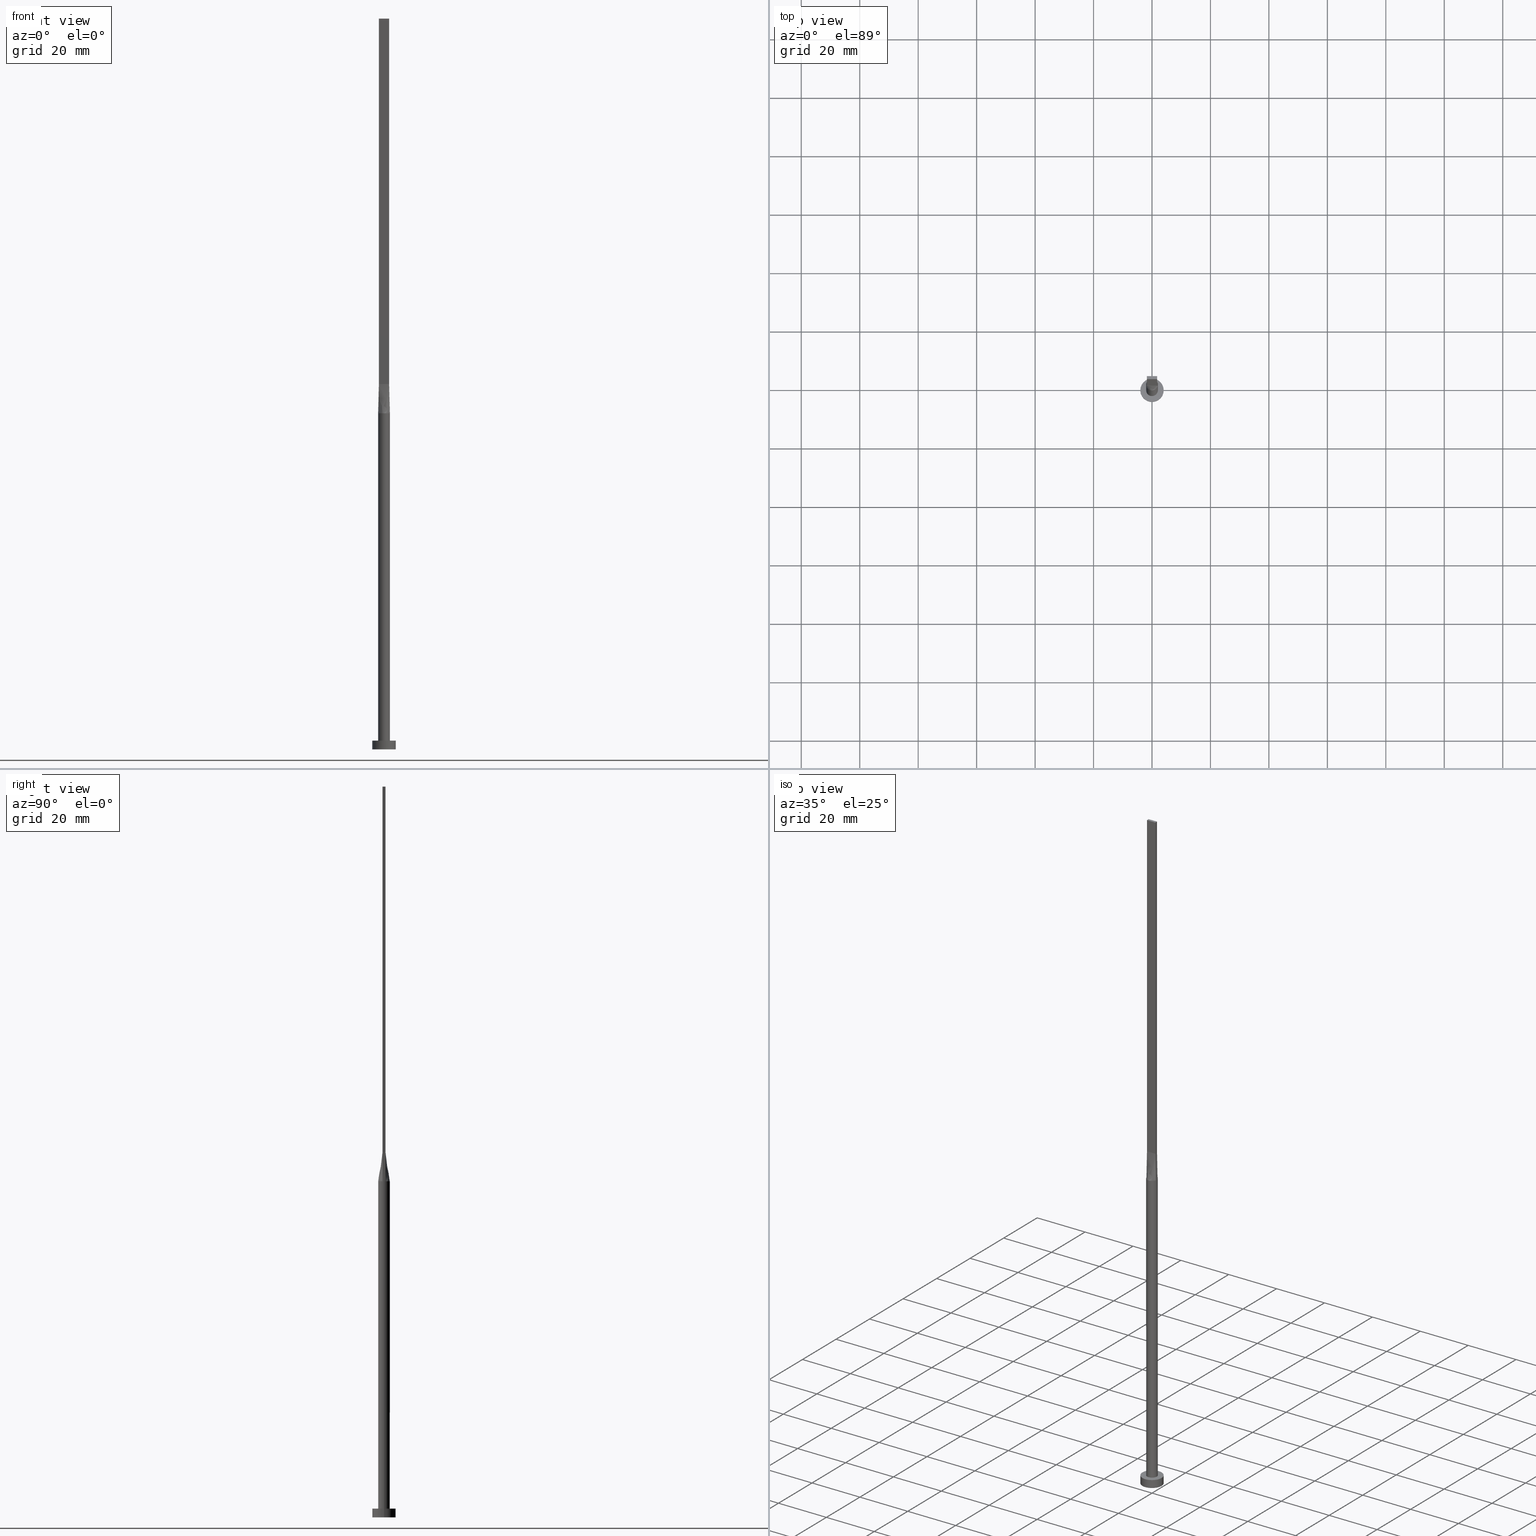
[diagram: canonical four-view strip — front | top / right | iso, engineering-drawing reading convention]
A machine part, canonical four-view strip (front | top / right | iso — engineering-drawing reading convention). The complete STEP part file that produces these views, byte-faithful:
ISO-10303-21;
HEADER;
FILE_DESCRIPTION (( 'STEP AP203' ),
    '1' );
FILE_NAME ('9806.STEP',
    '2023-02-13T13:53:59',
    ( '' ),
    ( '' ),
    'SwSTEP 2.0',
    'SolidWorks 2019',
    '' );
FILE_SCHEMA (( 'CONFIG_CONTROL_DESIGN' ));
ENDSEC;

DATA;
#1 = CARTESIAN_POINT ( 'NONE',  ( -1.812374357931688884, 0.8669367617086288780, 115.0000000000000284 ) ) ;
#2 = COORDINATED_UNIVERSAL_TIME_OFFSET ( 1, 0, .AHEAD. ) ;
#3 = FACE_OUTER_BOUND ( 'NONE', #205, .T. ) ;
#4 = SHAPE_DEFINITION_REPRESENTATION ( #494, #318 ) ;
#5 = CARTESIAN_POINT ( 'NONE',  ( -1.923161340940673369, -0.5494751859438878894, 115.0000000000000000 ) ) ;
#6 = CARTESIAN_POINT ( 'NONE',  ( -2.000000000000000000, 0.000000000000000000, 3.000000000000000000 ) ) ;
#7 = AXIS2_PLACEMENT_3D ( 'NONE', #476, #25, #53 ) ;
#8 = CARTESIAN_POINT ( 'NONE',  ( 4.000000000000000000, 4.898587196589412829E-16, 3.000000000000000000 ) ) ;
#9 = CARTESIAN_POINT ( 'NONE',  ( -1.155438169178558461, -1.647245198242353714, 115.0000000000000568 ) ) ;
#10 = ADVANCED_FACE ( 'NONE', ( #482, #40 ), #217, .T. ) ;
#11 = ORIENTED_EDGE ( 'NONE', *, *, #389, .F. ) ;
#12 = CARTESIAN_POINT ( 'NONE',  ( -0.9545234919502401105, 1.774214358793530177, 115.0000000000000000 ) ) ;
#13 = CARTESIAN_POINT ( 'NONE',  ( 1.604166666666666741, -0.4999999999999997780, 125.0000000000000000 ) ) ;
#14 = EDGE_LOOP ( 'NONE', ( #188, #257, #11, #450 ) ) ;
#15 = CARTESIAN_POINT ( 'NONE',  ( -0.9545234919502417759, -1.774214358793529067, 115.0000000000000000 ) ) ;
#16 = CIRCLE ( 'NONE', #579, 2.000000000000000000 ) ;
#17 = ADVANCED_FACE ( 'NONE', ( #101 ), #285, .T. ) ;
#18 = ORIENTED_EDGE ( 'NONE', *, *, #368, .F. ) ;
#19 = CARTESIAN_POINT ( 'NONE',  ( 0.5022746254375793917, -1.951069421695588169, 114.9999999999999858 ) ) ;
#20 = EDGE_LOOP ( 'NONE', ( #269, #273, #244, #81, #345, #154 ) ) ;
#21 = DIRECTION ( 'NONE',  ( 1.000000000000000000, 0.000000000000000000, 0.000000000000000000 ) ) ;
#22 = CARTESIAN_POINT ( 'NONE',  ( 1.486037034853319616, 1.356520562679217834, 114.9999999999999716 ) ) ;
#23 = ORIENTED_EDGE ( 'NONE', *, *, #204, .T. ) ;
#24 = DIRECTION ( 'NONE',  ( -0.000000000000000000, -0.000000000000000000, -1.000000000000000000 ) ) ;
#25 = DIRECTION ( 'NONE',  ( 0.000000000000000000, 0.000000000000000000, 1.000000000000000000 ) ) ;
#26 = CARTESIAN_POINT ( 'NONE',  ( 1.750000000000000000, -0.4999999999999997780, 125.0000000000000000 ) ) ;
#27 = AXIS2_PLACEMENT_3D ( 'NONE', #514, #553, #67 ) ;
#28 = ORIENTED_EDGE ( 'NONE', *, *, #360, .F. ) ;
#29 = CIRCLE ( 'NONE', #80, 2.000000000000000000 ) ;
#30 = CARTESIAN_POINT ( 'NONE',  ( -0.5833333333333350357, 0.5000000000000002220, 125.0000000000000000 ) ) ;
#31 = EDGE_CURVE ( 'NONE', #471, #287, #241, .T. ) ;
#32 = ORIENTED_EDGE ( 'NONE', *, *, #467, .T. ) ;
#33 = CARTESIAN_POINT ( 'NONE',  ( -0.2916666666666684615, 0.5000000000000002220, 125.0000000000000000 ) ) ;
#34 = CARTESIAN_POINT ( 'NONE',  ( -1.923179810488875541, 0.5494804890868837388, 115.0000000000000000 ) ) ;
#35 = DIRECTION ( 'NONE',  ( 0.000000000000000000, 0.000000000000000000, 1.000000000000000000 ) ) ;
#36 = CC_DESIGN_DATE_AND_TIME_ASSIGNMENT ( #270, #537, ( #77 ) ) ;
#37 = PERSON_AND_ORGANIZATION ( #200, #403 ) ;
#38 = CARTESIAN_POINT ( 'NONE',  ( 1.836523947640823051, -0.5247211278973777926, 120.0000000000000000 ) ) ;
#39 = CARTESIAN_POINT ( 'NONE',  ( 1.750000000000000000, -0.4999999999999997780, 125.0000000000000000 ) ) ;
#40 = FACE_OUTER_BOUND ( 'NONE', #440, .T. ) ;
#41 = SECURITY_CLASSIFICATION_LEVEL ( 'unclassified' ) ;
#42 = AXIS2_PLACEMENT_3D ( 'NONE', #394, #456, #559 ) ;
#43 = VERTEX_POINT ( 'NONE', #5 ) ;
#44 = PRODUCT ( '9806', '9806', '', ( #210 ) ) ;
#45 = AXIS2_PLACEMENT_3D ( 'NONE', #438, #347, #509 ) ;
#46 = PERSON_AND_ORGANIZATION ( #200, #403 ) ;
#47 = LINE ( 'NONE', #534, #277 ) ;
#48 = PLANE ( 'NONE',  #458 ) ;
#49 = CARTESIAN_POINT ( 'NONE',  ( -1.750000000000000000, -0.4999999999999995559, 250.0000000000000000 ) ) ;
#50 = CARTESIAN_POINT ( 'NONE',  ( 1.616149014776643522, 1.193458220519943103, 114.9999999999999858 ) ) ;
#51 = CC_DESIGN_DATE_AND_TIME_ASSIGNMENT ( #166, #133, ( #137 ) ) ;
#52 = CARTESIAN_POINT ( 'NONE',  ( 1.750000000000000000, -0.4999999999999997780, 250.0000000000000000 ) ) ;
#53 = DIRECTION ( 'NONE',  ( 1.000000000000000000, 0.000000000000000000, 0.000000000000000000 ) ) ;
#54 = VERTEX_POINT ( 'NONE', #8 ) ;
#55 = CARTESIAN_POINT ( 'NONE',  ( 1.458333333333333259, -0.4999999999999996669, 125.0000000000000000 ) ) ;
#56 = EDGE_LOOP ( 'NONE', ( #160, #324, #180, #320 ) ) ;
#57 = CARTESIAN_POINT ( 'NONE',  ( -0.1458333333333336479, -0.4999999999999995559, 125.0000000000000000 ) ) ;
#58 = DIRECTION ( 'NONE',  ( 1.000000000000000000, 0.000000000000000000, 0.000000000000000000 ) ) ;
#59 = ADVANCED_FACE ( 'NONE', ( #334 ), #457, .T. ) ;
#60 = DIRECTION ( 'NONE',  ( 2.168404344971008868E-16, -1.000000000000000000, 0.000000000000000000 ) ) ;
#61 = VECTOR ( 'NONE', #452, 1000.000000000000000 ) ;
#62 = CARTESIAN_POINT ( 'NONE',  ( 0.5833333333333333703, -0.4999999999999995559, 125.0000000000000000 ) ) ;
#63 = CC_DESIGN_APPROVAL ( #505, ( #435 ) ) ;
#64 = CARTESIAN_POINT ( 'NONE',  ( -0.9545234919502401105, 1.774214358793530177, 115.0000000000000000 ) ) ;
#65 = LINE ( 'NONE', #155, #290 ) ;
#66 = FACE_OUTER_BOUND ( 'NONE', #56, .T. ) ;
#67 = DIRECTION ( 'NONE',  ( 1.000000000000000000, 0.000000000000000000, 0.000000000000000000 ) ) ;
#68 = PERSON_AND_ORGANIZATION ( #200, #403 ) ;
#69 = CARTESIAN_POINT ( 'NONE',  ( -1.836523947640823273, -0.5247211278973773485, 120.0000000000000000 ) ) ;
#70 = CARTESIAN_POINT ( 'NONE',  ( -0.5022746254375797248, 1.951069421695588169, 115.0000000000000142 ) ) ;
#71 = MANIFOLD_SOLID_BREP ( 'P�idat vysunut�m5', #529 ) ;
#72 = ADVANCED_FACE ( 'NONE', ( #515 ), #344, .F. ) ;
#73 = AXIS2_PLACEMENT_3D ( 'NONE', #260, #207, #446 ) ;
#74 = CARTESIAN_POINT ( 'NONE',  ( -2.000000000000000000, 8.710755549421510381E-17, 114.9999999999999858 ) ) ;
#75 = APPROVAL_ROLE ( '' ) ;
#76 = ORIENTED_EDGE ( 'NONE', *, *, #463, .F. ) ;
#77 = PRODUCT_DEFINITION ( 'NEZN�M�', '', #435, #448 ) ;
#78 = CALENDAR_DATE ( 2023, 13, 2 ) ;
#79 = AXIS2_PLACEMENT_3D ( 'NONE', #235, #517, #356 ) ;
#80 = AXIS2_PLACEMENT_3D ( 'NONE', #198, #164, #259 ) ;
#81 = ORIENTED_EDGE ( 'NONE', *, *, #500, .F. ) ;
#82 = CALENDAR_DATE ( 2023, 13, 2 ) ;
#83 = DIRECTION ( 'NONE',  ( 0.01730198768854153066, -0.004943425053868934910, 0.9998380887777591486 ) ) ;
#84 = CARTESIAN_POINT ( 'NONE',  ( -4.000000000000000000, 0.000000000000000000, 3.000000000000000000 ) ) ;
#85 = EDGE_CURVE ( 'NONE', #215, #445, #348, .T. ) ;
#86 = ORIENTED_EDGE ( 'NONE', *, *, #580, .T. ) ;
#87 = CARTESIAN_POINT ( 'NONE',  ( 1.750000000000000000, -0.4999999999999997780, 250.0000000000000000 ) ) ;
#88 = CARTESIAN_POINT ( 'NONE',  ( -1.749999999999999778, 0.5000000000000002220, 125.0000000000000000 ) ) ;
#89 = B_SPLINE_SURFACE_WITH_KNOTS ( 'NONE', 3, 1, ( 
 ( #141, #173 ),
 ( #326, #533 ),
 ( #497, #100 ),
 ( #231, #490 ),
 ( #139, #114 ),
 ( #422, #562 ) ),
 .UNSPECIFIED., .F., .F., .F.,
 ( 4, 2, 4 ),
 ( 2, 2 ),
 ( 0.000000000000000000, 0.5000000000000000000, 1.000000000000000000 ),
 ( 0.000000000000000000, 1.000000000000000000 ),
 .UNSPECIFIED. ) ;
#90 = CARTESIAN_POINT ( 'NONE',  ( 1.750000000000000000, -0.4999999999999997780, 250.0000000000000000 ) ) ;
#91 = APPROVAL_ROLE ( '' ) ;
#92 = APPROVAL_PERSON_ORGANIZATION ( #576, #340, #91 ) ;
#93 = ORIENTED_EDGE ( 'NONE', *, *, #85, .T. ) ;
#94 = CARTESIAN_POINT ( 'NONE',  ( -4.000000000000000000, 0.000000000000000000, 0.000000000000000000 ) ) ;
#95 = CARTESIAN_POINT ( 'NONE',  ( 1.749999999999999778, 0.3333333333333335369, 125.0000000000000000 ) ) ;
#96 = ORIENTED_EDGE ( 'NONE', *, *, #289, .T. ) ;
#97 = CARTESIAN_POINT ( 'NONE',  ( 1.923047895281646325, 0.5494422557947561403, 115.0000000000000000 ) ) ;
#98 = CARTESIAN_POINT ( 'NONE',  ( 1.616149014776643522, -1.193458220519943547, 115.0000000000000426 ) ) ;
#99 = AXIS2_PLACEMENT_3D ( 'NONE', #551, #461, #21 ) ;
#100 = CARTESIAN_POINT ( 'NONE',  ( -1.749999999999999778, 0.1666666666666670182, 125.0000000000000000 ) ) ;
#101 = FACE_OUTER_BOUND ( 'NONE', #541, .T. ) ;
#102 = ORIENTED_EDGE ( 'NONE', *, *, #289, .F. ) ;
#103 = UNCERTAINTY_MEASURE_WITH_UNIT (LENGTH_MEASURE( 1.000000000000000082E-05 ), #253, 'distance_accuracy_value', 'NONE');
#104 = EDGE_CURVE ( 'NONE', #263, #424, #354, .T. ) ;
#105 = CARTESIAN_POINT ( 'NONE',  ( -0.7291666666666668517, -0.4999999999999995559, 125.0000000000000000 ) ) ;
#106 = CARTESIAN_POINT ( 'NONE',  ( -1.879022738048941710, 0.7035303061092221810, 115.0000000000000142 ) ) ;
#107 = LINE ( 'NONE', #294, #343 ) ;
#108 = CARTESIAN_POINT ( 'NONE',  ( 0.5833333333333314830, 0.5000000000000002220, 125.0000000000000000 ) ) ;
#109 = AXIS2_PLACEMENT_3D ( 'NONE', #254, #307, #58 ) ;
#110 = CARTESIAN_POINT ( 'NONE',  ( -0.1458333333333351189, 0.5000000000000002220, 125.0000000000000000 ) ) ;
#111 = CARTESIAN_POINT ( 'NONE',  ( -1.812374357931689994, -0.8669367617086277678, 115.0000000000000284 ) ) ;
#112 = DIRECTION ( 'NONE',  ( -0.01730198768854153066, -0.004943425053868957461, -0.9998380887777591486 ) ) ;
#113 = CARTESIAN_POINT ( 'NONE',  ( -1.616149014776643744, -1.193458220519941326, 114.9999999999999858 ) ) ;
#114 = CARTESIAN_POINT ( 'NONE',  ( -1.749999999999999778, -0.3333333333333328707, 125.0000000000000000 ) ) ;
#115 = EDGE_CURVE ( 'NONE', #54, #460, #542, .T. ) ;
#116 = CARTESIAN_POINT ( 'NONE',  ( -1.749999999999999778, 0.5000000000000002220, 250.0000000000000000 ) ) ;
#117 = ORIENTED_EDGE ( 'NONE', *, *, #104, .T. ) ;
#118 = FACE_OUTER_BOUND ( 'NONE', #271, .T. ) ;
#119 = ORIENTED_EDGE ( 'NONE', *, *, #268, .T. ) ;
#120 = AXIS2_PLACEMENT_3D ( 'NONE', #392, #479, #561 ) ;
#121 = CARTESIAN_POINT ( 'NONE',  ( 0.000000000000000000, 0.000000000000000000, 3.000000000000000000 ) ) ;
#122 = EDGE_CURVE ( 'NONE', #300, #287, #475, .T. ) ;
#123 = COORDINATED_UNIVERSAL_TIME_OFFSET ( 1, 0, .AHEAD. ) ;
#124 = CARTESIAN_POINT ( 'NONE',  ( -1.750000000000000000, -0.4999999999999995559, 250.0000000000000000 ) ) ;
#125 = DIRECTION ( 'NONE',  ( -1.000000000000000000, 0.000000000000000000, 0.000000000000000000 ) ) ;
#126 = DIRECTION ( 'NONE',  ( 2.168404344971009361E-16, 1.000000000000000000, 0.000000000000000000 ) ) ;
#127 = AXIS2_PLACEMENT_3D ( 'NONE', #581, #316, #170 ) ;
#128 = CARTESIAN_POINT ( 'NONE',  ( -0.2514338042514528415, 1.999999999999999556, 115.0000000000000426 ) ) ;
#129 = AXIS2_PLACEMENT_3D ( 'NONE', #469, #35, #577 ) ;
#130 = CARTESIAN_POINT ( 'NONE',  ( -1.836523947640823051, 0.5247211278973779036, 120.0000000000000000 ) ) ;
#131 = DIRECTION ( 'NONE',  ( -0.000000000000000000, -0.000000000000000000, -1.000000000000000000 ) ) ;
#132 = ADVANCED_FACE ( 'NONE', ( #118 ), #388, .T. ) ;
#133 = DATE_TIME_ROLE ( 'classification_date' ) ;
#134 = CARTESIAN_POINT ( 'NONE',  ( 2.000000000000000000, 2.759698982225367658E-17, 114.9999999999999858 ) ) ;
#135 = CARTESIAN_POINT ( 'NONE',  ( 1.020833333333331483, 0.5000000000000002220, 125.0000000000000000 ) ) ;
#136 = CARTESIAN_POINT ( 'NONE',  ( 1.923154993136894975, 0.5494733089275741778, 115.0000000000000000 ) ) ;
#137 = SECURITY_CLASSIFICATION ( '', '', #41 ) ;
#138 = ADVANCED_FACE ( 'NONE', ( #351 ), #306, .T. ) ;
#139 = CARTESIAN_POINT ( 'NONE',  ( -1.973362360690451345, -0.3733416268639377367, 115.0000000000000142 ) ) ;
#140 = PERSON_AND_ORGANIZATION ( #200, #403 ) ;
#141 = CARTESIAN_POINT ( 'NONE',  ( -1.923047895281646102, 0.5494422557947564734, 115.0000000000000000 ) ) ;
#142 = CARTESIAN_POINT ( 'NONE',  ( 0.9545234919502409987, 1.774214358793529955, 115.0000000000000142 ) ) ;
#143 = CARTESIAN_POINT ( 'NONE',  ( 4.000000000000000000, 4.898587196589412829E-16, 3.000000000000000000 ) ) ;
#144 = VERTEX_POINT ( 'NONE', #39 ) ;
#145 = CARTESIAN_POINT ( 'NONE',  ( 0.1458333333333331483, -0.4999999999999995559, 125.0000000000000000 ) ) ;
#146 = CARTESIAN_POINT ( 'NONE',  ( -1.486037034853319616, 1.356520562679218056, 115.0000000000000000 ) ) ;
#147 = ORIENTED_EDGE ( 'NONE', *, *, #373, .F. ) ;
#148 = CARTESIAN_POINT ( 'NONE',  ( -1.750000000000000000, -0.4999999999999995559, 125.0000000000000000 ) ) ;
#149 = LOCAL_TIME ( 14, 53, 59.00000000000000000, #369 ) ;
#150 = DIRECTION ( 'NONE',  ( 1.000000000000000000, -6.195440985631454085E-17, 0.000000000000000000 ) ) ;
#151 = ORIENTED_EDGE ( 'NONE', *, *, #484, .F. ) ;
#152 = CARTESIAN_POINT ( 'NONE',  ( 1.749999999999999778, 0.5000000000000002220, 125.0000000000000000 ) ) ;
#153 = CARTESIAN_POINT ( 'NONE',  ( 1.999999999999999556, -0.1867399261870124894, 114.9999999999999858 ) ) ;
#154 = ORIENTED_EDGE ( 'NONE', *, *, #463, .T. ) ;
#155 = CARTESIAN_POINT ( 'NONE',  ( 2.000000000000000000, 2.449293598294706414E-16, 115.0000000000000000 ) ) ;
#156 = ORIENTED_EDGE ( 'NONE', *, *, #540, .T. ) ;
#157 = CARTESIAN_POINT ( 'NONE',  ( 0.2916666666666648533, 0.5000000000000002220, 125.0000000000000000 ) ) ;
#158 = DIRECTION ( 'NONE',  ( -2.168404344971008868E-16, 1.000000000000000000, -0.000000000000000000 ) ) ;
#159 = DIRECTION ( 'NONE',  ( 0.000000000000000000, -0.000000000000000000, -1.000000000000000000 ) ) ;
#160 = ORIENTED_EDGE ( 'NONE', *, *, #336, .T. ) ;
#161 = ORIENTED_EDGE ( 'NONE', *, *, #167, .T. ) ;
#162 = APPROVAL_DATE_TIME ( #566, #453 ) ;
#163 = CIRCLE ( 'NONE', #387, 2.000000000000000000 ) ;
#164 = DIRECTION ( 'NONE',  ( 0.000000000000000000, 0.000000000000000000, 1.000000000000000000 ) ) ;
#165 = CARTESIAN_POINT ( 'NONE',  ( -1.923047895281646325, 0.5494422557947555852, 115.0000000000000000 ) ) ;
#166 = DATE_AND_TIME ( #409, #149 ) ;
#167 = EDGE_CURVE ( 'NONE', #424, #548, #258, .T. ) ;
#168 = COORDINATED_UNIVERSAL_TIME_OFFSET ( 1, 0, .AHEAD. ) ;
#169 = VERTEX_POINT ( 'NONE', #333 ) ;
#170 = DIRECTION ( 'NONE',  ( 1.000000000000000000, 0.000000000000000000, 0.000000000000000000 ) ) ;
#171 = CARTESIAN_POINT ( 'NONE',  ( -1.166666666666667407, 0.5000000000000002220, 125.0000000000000000 ) ) ;
#172 = APPROVAL_ROLE ( '' ) ;
#173 = CARTESIAN_POINT ( 'NONE',  ( -1.749999999999999778, 0.5000000000000002220, 125.0000000000000000 ) ) ;
#174 = DIRECTION ( 'NONE',  ( -0.000000000000000000, -0.000000000000000000, -1.000000000000000000 ) ) ;
#175 = CARTESIAN_POINT ( 'NONE',  ( 0.2514338042514535632, 1.999999999999999556, 115.0000000000000000 ) ) ;
#176 = CARTESIAN_POINT ( 'NONE',  ( 1.486037034853319616, 1.356520562679217834, 114.9999999999999716 ) ) ;
#177 = ADVANCED_FACE ( 'NONE', ( #3 ), #89, .T. ) ;
#178 = PERSON_AND_ORGANIZATION_ROLE ( 'design_supplier' ) ;
#179 = APPLICATION_CONTEXT ( 'configuration controlled 3d designs of mechanical parts and assemblies' ) ;
#180 = ORIENTED_EDGE ( 'NONE', *, *, #393, .F. ) ;
#181 = CARTESIAN_POINT ( 'NONE',  ( 0.000000000000000000, 0.000000000000000000, 115.0000000000000000 ) ) ;
#182 = APPROVAL_PERSON_ORGANIZATION ( #473, #453, #75 ) ;
#183 = CARTESIAN_POINT ( 'NONE',  ( 0.000000000000000000, 0.000000000000000000, 3.000000000000000000 ) ) ;
#184 = CARTESIAN_POINT ( 'NONE',  ( 1.923047895281646325, -0.5494422557947558072, 115.0000000000000000 ) ) ;
#185 = EDGE_CURVE ( 'NONE', #215, #169, #470, .T. ) ;
#186 = AXIS2_PLACEMENT_3D ( 'NONE', #574, #362, #199 ) ;
#187 = CARTESIAN_POINT ( 'NONE',  ( 1.750000000000000000, -0.4999999999999997780, 250.0000000000000000 ) ) ;
#188 = ORIENTED_EDGE ( 'NONE', *, *, #484, .T. ) ;
#189 = CARTESIAN_POINT ( 'NONE',  ( 1.020833333333333259, -0.4999999999999995559, 125.0000000000000000 ) ) ;
#190 = VECTOR ( 'NONE', #384, 1000.000000000000114 ) ;
#191 = ORIENTED_EDGE ( 'NONE', *, *, #204, .F. ) ;
#192 = DIRECTION ( 'NONE',  ( -0.000000000000000000, -0.000000000000000000, -1.000000000000000000 ) ) ;
#193 = CC_DESIGN_PERSON_AND_ORGANIZATION_ASSIGNMENT ( #406, #363, ( #137 ) ) ;
#194 = CARTESIAN_POINT ( 'NONE',  ( 1.923154993136894975, 0.5494733089275741778, 115.0000000000000000 ) ) ;
#195 = ORIENTED_EDGE ( 'NONE', *, *, #185, .T. ) ;
#196 = CARTESIAN_POINT ( 'NONE',  ( 1.155438169178558461, 1.647245198242353714, 114.9999999999999858 ) ) ;
#197 = ORIENTED_EDGE ( 'NONE', *, *, #230, .T. ) ;
#198 = CARTESIAN_POINT ( 'NONE',  ( 0.000000000000000000, 0.000000000000000000, 115.0000000000000000 ) ) ;
#199 = DIRECTION ( 'NONE',  ( -1.000000000000000000, 0.000000000000000000, 0.000000000000000000 ) ) ;
#200 = PERSON ( 'NEUR�EN�', 'NEUR�EN�', 'NEUR�EN�', ('NEUR�EN�'), ('NEUR�EN�'), ('NEUR�EN�') ) ;
#201 = CARTESIAN_POINT ( 'NONE',  ( 1.749999999999999778, 0.5000000000000002220, 250.0000000000000000 ) ) ;
#202 = CIRCLE ( 'NONE', #451, 2.000000000000000000 ) ;
#203 = CARTESIAN_POINT ( 'NONE',  ( 1.973362360690451567, -0.3733416268639390689, 114.9999999999999858 ) ) ;
#204 = EDGE_CURVE ( 'NONE', #287, #43, #547, .T. ) ;
#205 = EDGE_LOOP ( 'NONE', ( #156, #508, #191, #492, #396 ) ) ;
#206 = APPROVAL_STATUS ( 'not_yet_approved' ) ;
#207 = DIRECTION ( 'NONE',  ( -0.000000000000000000, -0.000000000000000000, -1.000000000000000000 ) ) ;
#208 = LINE ( 'NONE', #546, #489 ) ;
#209 = FACE_OUTER_BOUND ( 'NONE', #447, .T. ) ;
#210 = MECHANICAL_CONTEXT ( 'NONE', #179, 'mechanical' ) ;
#211 = LOCAL_TIME ( 14, 53, 59.00000000000000000, #370 ) ;
#212 = APPLICATION_CONTEXT ( 'configuration controlled 3d designs of mechanical parts and assemblies' ) ;
#213 = PLANE ( 'NONE',  #357 ) ;
#214 = EDGE_LOOP ( 'NONE', ( #520, #380, #567, #86 ) ) ;
#215 = VERTEX_POINT ( 'NONE', #298 ) ;
#216 = ADVANCED_FACE ( 'NONE', ( #66 ), #248, .F. ) ;
#217 = PLANE ( 'NONE',  #431 ) ;
#218 = ORIENTED_EDGE ( 'NONE', *, *, #389, .T. ) ;
#219 = APPROVAL_DATE_TIME ( #283, #505 ) ;
#220 = ORIENTED_EDGE ( 'NONE', *, *, #449, .F. ) ;
#221 = EDGE_CURVE ( 'NONE', #390, #144, #272, .T. ) ;
#222 = APPROVAL_STATUS ( 'not_yet_approved' ) ;
#223 = PRODUCT_RELATED_PRODUCT_CATEGORY ( 'detail', '', ( #44 ) ) ;
#224 = ORIENTED_EDGE ( 'NONE', *, *, #304, .F. ) ;
#225 = DIRECTION ( 'NONE',  ( 1.000000000000000000, -6.195440985631454085E-17, 0.000000000000000000 ) ) ;
#226 = APPROVAL_DATE_TIME ( #401, #340 ) ;
#227 = VECTOR ( 'NONE', #274, 1000.000000000000114 ) ;
#228 = CARTESIAN_POINT ( 'NONE',  ( -4.000000000000000000, 0.000000000000000000, 3.000000000000000000 ) ) ;
#229 = CARTESIAN_POINT ( 'NONE',  ( 1.879022738048941710, -0.7035303061092221810, 115.0000000000000142 ) ) ;
#230 = EDGE_CURVE ( 'NONE', #460, #255, #527, .T. ) ;
#231 = CARTESIAN_POINT ( 'NONE',  ( -1.999999999999999556, -0.1867399261870113791, 114.9999999999999858 ) ) ;
#232 = EDGE_LOOP ( 'NONE', ( #161, #296, #224, #220 ) ) ;
#233 = CARTESIAN_POINT ( 'NONE',  ( 1.458333333333331927, 0.5000000000000002220, 125.0000000000000000 ) ) ;
#234 = CARTESIAN_POINT ( 'NONE',  ( 0.9545234919502404436, -1.774214358793530177, 114.9999999999999858 ) ) ;
#235 = CARTESIAN_POINT ( 'NONE',  ( 0.000000000000000000, 0.000000000000000000, 3.000000000000000000 ) ) ;
#236 = DIRECTION ( 'NONE',  ( 1.000000000000000000, 0.000000000000000000, -0.000000000000000000 ) ) ;
#237 = AXIS2_PLACEMENT_3D ( 'NONE', #419, #416, #236 ) ;
#238 = DIRECTION ( 'NONE',  ( -1.000000000000000000, -2.168404344971008868E-16, 0.000000000000000000 ) ) ;
#239 = ORIENTED_EDGE ( 'NONE', *, *, #418, .F. ) ;
#240 = CARTESIAN_POINT ( 'NONE',  ( -0.2514338042514540073, -1.999999999999999112, 115.0000000000000000 ) ) ;
#241 = LINE ( 'NONE', #88, #61 ) ;
#242 = VECTOR ( 'NONE', #83, 1000.000000000000114 ) ;
#243 = DIRECTION ( 'NONE',  ( 0.000000000000000000, -1.000000000000000000, 0.000000000000000000 ) ) ;
#244 = ORIENTED_EDGE ( 'NONE', *, *, #268, .F. ) ;
#245 = CC_DESIGN_PERSON_AND_ORGANIZATION_ASSIGNMENT ( #68, #524, ( #77 ) ) ;
#246 = CARTESIAN_POINT ( 'NONE',  ( -1.879022738048942598, -0.7035303061092208488, 115.0000000000000142 ) ) ;
#247 = PLANE ( 'NONE',  #129 ) ;
#248 = PLANE ( 'NONE',  #42 ) ;
#249 = DIRECTION ( 'NONE',  ( -0.000000000000000000, -0.000000000000000000, -1.000000000000000000 ) ) ;
#250 = EDGE_LOOP ( 'NONE', ( #119, #480, #511, #23 ) ) ;
#251 = CARTESIAN_POINT ( 'NONE',  ( -1.155438169178558017, 1.647245198242353936, 115.0000000000000426 ) ) ;
#252 = AXIS2_PLACEMENT_3D ( 'NONE', #201, #243, #159 ) ;
#253 =( LENGTH_UNIT ( ) NAMED_UNIT ( * ) SI_UNIT ( .MILLI., .METRE. ) );
#254 = CARTESIAN_POINT ( 'NONE',  ( 0.000000000000000000, 0.000000000000000000, 115.0000000000000000 ) ) ;
#255 = VERTEX_POINT ( 'NONE', #94 ) ;
#256 = CARTESIAN_POINT ( 'NONE',  ( 0.5022746254375803909, 1.951069421695587947, 115.0000000000000000 ) ) ;
#257 = ORIENTED_EDGE ( 'NONE', *, *, #85, .F. ) ;
#258 = B_SPLINE_CURVE_WITH_KNOTS ( 'NONE', 3,
 ( #136, #367, #338, #50, #22, #196, #385, #256, #175, #128, #70, #12, #251, #146, #544, #279, #106, #407 ),
 .UNSPECIFIED., .F., .F.,
 ( 4, 2, 2, 2, 2, 2, 2, 2, 4 ),
 ( 0.000000000000000000, 0.1249999999999999722, 0.2500000000000000000, 0.3750000000000000000, 0.5000000000000001110, 0.6250000000000001110, 0.7500000000000000000, 0.8750000000000000000, 1.000000000000000000 ),
 .UNSPECIFIED. ) ;
#259 = DIRECTION ( 'NONE',  ( 1.000000000000000000, 0.000000000000000000, 0.000000000000000000 ) ) ;
#260 = CARTESIAN_POINT ( 'NONE',  ( 0.000000000000000000, 0.000000000000000000, 115.0000000000000000 ) ) ;
#261 = ADVANCED_FACE ( 'NONE', ( #483 ), #397, .T. ) ;
#262 = CARTESIAN_POINT ( 'NONE',  ( -2.000000000000000000, 0.000000000000000000, 115.0000000000000000 ) ) ;
#263 = VERTEX_POINT ( 'NONE', #134 ) ;
#264 = CARTESIAN_POINT ( 'NONE',  ( -1.020833333333334147, 0.5000000000000002220, 125.0000000000000000 ) ) ;
#265 = LOCAL_TIME ( 14, 53, 59.00000000000000000, #2 ) ;
#266 = VECTOR ( 'NONE', #278, 1000.000000000000000 ) ;
#267 = DIRECTION ( 'NONE',  ( -0.000000000000000000, -0.000000000000000000, -1.000000000000000000 ) ) ;
#268 = EDGE_CURVE ( 'NONE', #43, #309, #554, .T. ) ;
#269 = ORIENTED_EDGE ( 'NONE', *, *, #439, .F. ) ;
#270 = DATE_AND_TIME ( #526, #265 ) ;
#271 = EDGE_LOOP ( 'NONE', ( #28, #239, #197, #404 ) ) ;
#272 = LINE ( 'NONE', #87, #513 ) ;
#273 = ORIENTED_EDGE ( 'NONE', *, *, #402, .F. ) ;
#274 = DIRECTION ( 'NONE',  ( -0.01730198768854150984, 0.004943425053869000829, 0.9998380887777591486 ) ) ;
#275 = ADVANCED_FACE ( 'NONE', ( #280 ), #48, .F. ) ;
#276 = DIRECTION ( 'NONE',  ( 1.000000000000000000, 0.000000000000000000, -0.000000000000000000 ) ) ;
#277 = VECTOR ( 'NONE', #225, 1000.000000000000000 ) ;
#278 = DIRECTION ( 'NONE',  ( -2.168404344971008868E-16, 1.000000000000000000, 0.000000000000000000 ) ) ;
#279 = CARTESIAN_POINT ( 'NONE',  ( -1.812374357931688884, 0.8669367617086288780, 115.0000000000000284 ) ) ;
#280 = FACE_OUTER_BOUND ( 'NONE', #14, .T. ) ;
#281 = CARTESIAN_POINT ( 'NONE',  ( 1.973362360690451567, 0.3733416268639386804, 115.0000000000000142 ) ) ;
#282 = EDGE_LOOP ( 'NONE', ( #432, #405, #96, #436 ) ) ;
#283 = DATE_AND_TIME ( #82, #211 ) ;
#284 = B_SPLINE_SURFACE_WITH_KNOTS ( 'NONE', 3, 1, ( 
 ( #464, #148 ),
 ( #246, #342 ),
 ( #111, #293 ),
 ( #113, #299 ),
 ( #468, #335 ),
 ( #9, #105 ),
 ( #15, #374 ),
 ( #501, #462 ),
 ( #240, #57 ),
 ( #539, #145 ),
 ( #19, #332 ),
 ( #234, #62 ),
 ( #496, #381 ),
 ( #417, #189 ),
 ( #98, #291 ),
 ( #425, #55 ),
 ( #229, #13 ),
 ( #184, #379 ) ),
 .UNSPECIFIED., .F., .F., .F.,
 ( 4, 2, 2, 2, 2, 2, 2, 2, 4 ),
 ( 2, 2 ),
 ( 0.000000000000000000, 0.1249999999999999722, 0.2500000000000000000, 0.3750000000000000000, 0.5000000000000001110, 0.6250000000000001110, 0.7500000000000000000, 0.8750000000000000000, 1.000000000000000000 ),
 ( 0.000000000000000000, 1.000000000000000000 ),
 .UNSPECIFIED. ) ;
#285 = PLANE ( 'NONE',  #237 ) ;
#286 = CARTESIAN_POINT ( 'NONE',  ( 1.923047895281646325, 0.5494422557947563623, 115.0000000000000000 ) ) ;
#287 = VERTEX_POINT ( 'NONE', #506 ) ;
#288 = CIRCLE ( 'NONE', #27, 4.000000000000000000 ) ;
#289 = EDGE_CURVE ( 'NONE', #410, #255, #288, .T. ) ;
#290 = VECTOR ( 'NONE', #192, 1000.000000000000000 ) ;
#291 = CARTESIAN_POINT ( 'NONE',  ( 1.166666666666666519, -0.4999999999999995559, 125.0000000000000000 ) ) ;
#292 = ORIENTED_EDGE ( 'NONE', *, *, #304, .T. ) ;
#293 = CARTESIAN_POINT ( 'NONE',  ( -1.458333333333333259, -0.4999999999999995559, 125.0000000000000000 ) ) ;
#294 = CARTESIAN_POINT ( 'NONE',  ( 1.749999999999999778, 0.5000000000000002220, 125.0000000000000000 ) ) ;
#295 = ADVANCED_FACE ( 'NONE', ( #209 ), #330, .T. ) ;
#296 = ORIENTED_EDGE ( 'NONE', *, *, #331, .T. ) ;
#297 = CARTESIAN_POINT ( 'NONE',  ( 4.000000000000000000, 4.898587196589412829E-16, 0.000000000000000000 ) ) ;
#298 = CARTESIAN_POINT ( 'NONE',  ( 1.749999999999999778, 0.5000000000000002220, 250.0000000000000000 ) ) ;
#299 = CARTESIAN_POINT ( 'NONE',  ( -1.166666666666666519, -0.4999999999999995559, 125.0000000000000000 ) ) ;
#300 = VERTEX_POINT ( 'NONE', #49 ) ;
#301 = CARTESIAN_POINT ( 'NONE',  ( 0.000000000000000000, 0.000000000000000000, 3.000000000000000000 ) ) ;
#302 = DIRECTION ( 'NONE',  ( -0.000000000000000000, -0.000000000000000000, -1.000000000000000000 ) ) ;
#303 = VECTOR ( 'NONE', #112, 1000.000000000000114 ) ;
#304 = EDGE_CURVE ( 'NONE', #445, #471, #525, .T. ) ;
#305 = PERSON_AND_ORGANIZATION_ROLE ( 'design_owner' ) ;
#306 = CYLINDRICAL_SURFACE ( 'NONE', #73, 2.000000000000000000 ) ;
#307 = DIRECTION ( 'NONE',  ( 0.000000000000000000, 0.000000000000000000, 1.000000000000000000 ) ) ;
#308 = VECTOR ( 'NONE', #249, 1000.000000000000000 ) ;
#309 = VERTEX_POINT ( 'NONE', #319 ) ;
#310 = CARTESIAN_POINT ( 'NONE',  ( -1.486037034853319616, 1.356520562679218056, 115.0000000000000000 ) ) ;
#311 = CARTESIAN_POINT ( 'NONE',  ( -1.749999999999999778, 0.5000000000000002220, 125.0000000000000000 ) ) ;
#312 = ORIENTED_EDGE ( 'NONE', *, *, #522, .F. ) ;
#313 = CARTESIAN_POINT ( 'NONE',  ( -1.616149014776643966, 1.193458220519943103, 115.0000000000000284 ) ) ;
#314 =( NAMED_UNIT ( * ) PLANE_ANGLE_UNIT ( ) SI_UNIT ( $, .RADIAN. ) );
#315 = CC_DESIGN_PERSON_AND_ORGANIZATION_ASSIGNMENT ( #140, #178, ( #435 ) ) ;
#316 = DIRECTION ( 'NONE',  ( 0.000000000000000000, 0.000000000000000000, 1.000000000000000000 ) ) ;
#317 = AXIS2_PLACEMENT_3D ( 'NONE', #181, #131, #125 ) ;
#318 = ADVANCED_BREP_SHAPE_REPRESENTATION ( '9806', ( #71, #120 ), #555 ) ;
#319 = CARTESIAN_POINT ( 'NONE',  ( 1.923186205402444449, -0.5494823831763672173, 115.0000000000000000 ) ) ;
#320 = ORIENTED_EDGE ( 'NONE', *, *, #122, .T. ) ;
#321 = ADVANCED_FACE ( 'NONE', ( #531 ), #247, .F. ) ;
#322 = PERSON_AND_ORGANIZATION ( #200, #403 ) ;
#323 = ORIENTED_EDGE ( 'NONE', *, *, #449, .T. ) ;
#324 = ORIENTED_EDGE ( 'NONE', *, *, #221, .F. ) ;
#325 = CARTESIAN_POINT ( 'NONE',  ( 1.616149014776643522, 1.193458220519943103, 114.9999999999999858 ) ) ;
#326 = CARTESIAN_POINT ( 'NONE',  ( -1.973362360690451567, 0.3733416268639390134, 114.9999999999999858 ) ) ;
#327 = APPROVAL_PERSON_ORGANIZATION ( #322, #505, #172 ) ;
#328 = CARTESIAN_POINT ( 'NONE',  ( 0.7291666666666648533, 0.5000000000000002220, 125.0000000000000000 ) ) ;
#329 = CARTESIAN_POINT ( 'NONE',  ( 1.879022738048942154, 0.7035303061092218480, 115.0000000000000142 ) ) ;
#330 = B_SPLINE_SURFACE_WITH_KNOTS ( 'NONE', 3, 1, ( 
 ( #477, #26 ),
 ( #203, #383 ),
 ( #153, #455 ),
 ( #538, #528 ),
 ( #281, #95 ),
 ( #286, #487 ) ),
 .UNSPECIFIED., .F., .F., .F.,
 ( 4, 2, 4 ),
 ( 2, 2 ),
 ( 0.000000000000000000, 0.5000000000000000000, 1.000000000000000000 ),
 ( 0.000000000000000000, 1.000000000000000000 ),
 .UNSPECIFIED. ) ;
#331 = EDGE_CURVE ( 'NONE', #548, #471, #493, .T. ) ;
#332 = CARTESIAN_POINT ( 'NONE',  ( 0.2916666666666666297, -0.4999999999999995559, 125.0000000000000000 ) ) ;
#333 = CARTESIAN_POINT ( 'NONE',  ( -1.749999999999999778, 0.5000000000000002220, 250.0000000000000000 ) ) ;
#334 = FACE_OUTER_BOUND ( 'NONE', #232, .T. ) ;
#335 = CARTESIAN_POINT ( 'NONE',  ( -1.020833333333333259, -0.4999999999999995559, 125.0000000000000000 ) ) ;
#336 = EDGE_CURVE ( 'NONE', #287, #144, #47, .T. ) ;
#337 = LINE ( 'NONE', #466, #459 ) ;
#338 = CARTESIAN_POINT ( 'NONE',  ( 1.812374357931689328, 0.8669367617086293221, 115.0000000000000284 ) ) ;
#339 = DIRECTION ( 'NONE',  ( 1.000000000000000000, 3.552713678800500929E-15, 0.000000000000000000 ) ) ;
#340 = APPROVAL ( #412, 'NEUR�EN�' ) ;
#341 = VECTOR ( 'NONE', #302, 1000.000000000000000 ) ;
#342 = CARTESIAN_POINT ( 'NONE',  ( -1.604166666666666741, -0.4999999999999995559, 125.0000000000000000 ) ) ;
#343 = VECTOR ( 'NONE', #158, 1000.000000000000000 ) ;
#344 = PLANE ( 'NONE',  #252 ) ;
#345 = ORIENTED_EDGE ( 'NONE', *, *, #522, .T. ) ;
#346 = ORIENTED_EDGE ( 'NONE', *, *, #580, .F. ) ;
#347 = DIRECTION ( 'NONE',  ( 0.000000000000000000, 0.000000000000000000, 1.000000000000000000 ) ) ;
#348 = LINE ( 'NONE', #510, #341 ) ;
#349 = CARTESIAN_POINT ( 'NONE',  ( -0.5022746254375797248, 1.951069421695588169, 115.0000000000000142 ) ) ;
#350 = APPLICATION_PROTOCOL_DEFINITION ( 'international standard', 'config_control_design', 1994, #179 ) ;
#351 = FACE_OUTER_BOUND ( 'NONE', #20, .T. ) ;
#352 = DIRECTION ( 'NONE',  ( -1.000000000000000000, 0.000000000000000000, 0.000000000000000000 ) ) ;
#353 = VERTEX_POINT ( 'NONE', #6 ) ;
#354 = CIRCLE ( 'NONE', #109, 2.000000000000000000 ) ;
#355 = LINE ( 'NONE', #359, #371 ) ;
#356 = DIRECTION ( 'NONE',  ( 1.000000000000000000, 0.000000000000000000, 0.000000000000000000 ) ) ;
#357 = AXIS2_PLACEMENT_3D ( 'NONE', #116, #521, #126 ) ;
#358 = CARTESIAN_POINT ( 'NONE',  ( -1.458333333333333703, 0.5000000000000002220, 125.0000000000000000 ) ) ;
#359 = CARTESIAN_POINT ( 'NONE',  ( -1.749999999999999778, 0.5000000000000002220, 250.0000000000000000 ) ) ;
#360 = EDGE_CURVE ( 'NONE', #54, #410, #536, .T. ) ;
#361 = CYLINDRICAL_SURFACE ( 'NONE', #365, 4.000000000000000000 ) ;
#362 = DIRECTION ( 'NONE',  ( -0.000000000000000000, -0.000000000000000000, -1.000000000000000000 ) ) ;
#363 = PERSON_AND_ORGANIZATION_ROLE ( 'classification_officer' ) ;
#364 = VECTOR ( 'NONE', #442, 1000.000000000000000 ) ;
#365 = AXIS2_PLACEMENT_3D ( 'NONE', #121, #572, #441 ) ;
#366 = EDGE_LOOP ( 'NONE', ( #570, #485, #558, #312, #535, #437 ) ) ;
#367 = CARTESIAN_POINT ( 'NONE',  ( 1.879022738048942154, 0.7035303061092218480, 115.0000000000000142 ) ) ;
#368 = EDGE_CURVE ( 'NONE', #309, #144, #443, .T. ) ;
#369 = COORDINATED_UNIVERSAL_TIME_OFFSET ( 1, 0, .AHEAD. ) ;
#370 = COORDINATED_UNIVERSAL_TIME_OFFSET ( 1, 0, .AHEAD. ) ;
#371 = VECTOR ( 'NONE', #557, 1000.000000000000000 ) ;
#372 = CARTESIAN_POINT ( 'NONE',  ( 1.749999999999998890, 0.5000000000000002220, 125.0000000000000000 ) ) ;
#373 = EDGE_CURVE ( 'NONE', #255, #410, #523, .T. ) ;
#374 = CARTESIAN_POINT ( 'NONE',  ( -0.5833333333333334814, -0.4999999999999995559, 125.0000000000000000 ) ) ;
#375 = LINE ( 'NONE', #90, #266 ) ;
#376 = CARTESIAN_POINT ( 'NONE',  ( 0.000000000000000000, 0.000000000000000000, 115.0000000000000000 ) ) ;
#377 = ORIENTED_EDGE ( 'NONE', *, *, #185, .F. ) ;
#378 = CC_DESIGN_PERSON_AND_ORGANIZATION_ASSIGNMENT ( #37, #305, ( #44 ) ) ;
#379 = CARTESIAN_POINT ( 'NONE',  ( 1.750000000000000000, -0.4999999999999997780, 125.0000000000000000 ) ) ;
#380 = ORIENTED_EDGE ( 'NONE', *, *, #122, .F. ) ;
#381 = CARTESIAN_POINT ( 'NONE',  ( 0.7291666666666666297, -0.4999999999999995559, 125.0000000000000000 ) ) ;
#382 = CARTESIAN_POINT ( 'NONE',  ( 1.749999999999999778, 0.5000000000000002220, 250.0000000000000000 ) ) ;
#383 = CARTESIAN_POINT ( 'NONE',  ( 1.749999999999999778, -0.3333333333333330928, 125.0000000000000000 ) ) ;
#384 = DIRECTION ( 'NONE',  ( -0.01730198768854153066, -0.004943425053869011238, 0.9998380887777591486 ) ) ;
#385 = CARTESIAN_POINT ( 'NONE',  ( 0.9545234919502409987, 1.774214358793529955, 115.0000000000000142 ) ) ;
#386 = FACE_OUTER_BOUND ( 'NONE', #214, .T. ) ;
#387 = AXIS2_PLACEMENT_3D ( 'NONE', #301, #444, #516 ) ;
#388 = CYLINDRICAL_SURFACE ( 'NONE', #186, 4.000000000000000000 ) ;
#389 = EDGE_CURVE ( 'NONE', #390, #215, #375, .T. ) ;
#390 = VERTEX_POINT ( 'NONE', #52 ) ;
#391 = CARTESIAN_POINT ( 'NONE',  ( -1.155438169178558017, 1.647245198242353936, 115.0000000000000426 ) ) ;
#392 = CARTESIAN_POINT ( 'NONE',  ( 0.000000000000000000, 0.000000000000000000, 0.000000000000000000 ) ) ;
#393 = EDGE_CURVE ( 'NONE', #300, #390, #208, .T. ) ;
#394 = CARTESIAN_POINT ( 'NONE',  ( -1.750000000000000000, -0.4999999999999995559, 250.0000000000000000 ) ) ;
#395 = VECTOR ( 'NONE', #518, 1000.000000000000000 ) ;
#396 = ORIENTED_EDGE ( 'NONE', *, *, #331, .F. ) ;
#397 = CYLINDRICAL_SURFACE ( 'NONE', #317, 2.000000000000000000 ) ;
#398 = PERSON_AND_ORGANIZATION_ROLE ( 'creator' ) ;
#399 = CARTESIAN_POINT ( 'NONE',  ( 0.000000000000000000, 0.000000000000000000, 3.000000000000000000 ) ) ;
#400 = VECTOR ( 'NONE', #352, 1000.000000000000000 ) ;
#401 = DATE_AND_TIME ( #530, #465 ) ;
#402 = EDGE_CURVE ( 'NONE', #309, #263, #16, .T. ) ;
#403 = ORGANIZATION ( 'NEUR�EN�', 'NEUR�EN�', '' ) ;
#404 = ORIENTED_EDGE ( 'NONE', *, *, #373, .T. ) ;
#405 = ORIENTED_EDGE ( 'NONE', *, *, #360, .T. ) ;
#406 = PERSON_AND_ORGANIZATION ( #200, #403 ) ;
#407 = CARTESIAN_POINT ( 'NONE',  ( -1.923179810488875541, 0.5494804890868837388, 115.0000000000000000 ) ) ;
#408 = CARTESIAN_POINT ( 'NONE',  ( 1.812374357931689328, 0.8669367617086293221, 115.0000000000000284 ) ) ;
#409 = CALENDAR_DATE ( 2023, 13, 2 ) ;
#410 = VERTEX_POINT ( 'NONE', #297 ) ;
#411 = CC_DESIGN_PERSON_AND_ORGANIZATION_ASSIGNMENT ( #46, #398, ( #435 ) ) ;
#412 = APPROVAL_STATUS ( 'not_yet_approved' ) ;
#413 = CC_DESIGN_APPROVAL ( #453, ( #77 ) ) ;
#414 = EDGE_LOOP ( 'NONE', ( #76, #454 ) ) ;
#415 = DIRECTION ( 'NONE',  ( -2.168404344971009361E-16, -1.000000000000000000, 0.000000000000000000 ) ) ;
#416 = DIRECTION ( 'NONE',  ( 0.000000000000000000, 0.000000000000000000, 1.000000000000000000 ) ) ;
#417 = CARTESIAN_POINT ( 'NONE',  ( 1.486037034853319616, -1.356520562679219166, 115.0000000000000426 ) ) ;
#418 = EDGE_CURVE ( 'NONE', #460, #54, #423, .T. ) ;
#419 = CARTESIAN_POINT ( 'NONE',  ( 0.000000000000000000, 0.000000000000000000, 250.0000000000000000 ) ) ;
#420 = CARTESIAN_POINT ( 'NONE',  ( -1.749999999999999778, 0.5000000000000002220, 125.0000000000000000 ) ) ;
#421 = VECTOR ( 'NONE', #267, 1000.000000000000000 ) ;
#422 = CARTESIAN_POINT ( 'NONE',  ( -1.923047895281646547, -0.5494422557947552521, 115.0000000000000000 ) ) ;
#423 = CIRCLE ( 'NONE', #99, 4.000000000000000000 ) ;
#424 = VERTEX_POINT ( 'NONE', #194 ) ;
#425 = CARTESIAN_POINT ( 'NONE',  ( 1.812374357931689106, -0.8669367617086289890, 115.0000000000000284 ) ) ;
#426 = ORIENTED_EDGE ( 'NONE', *, *, #402, .T. ) ;
#427 = CARTESIAN_POINT ( 'NONE',  ( 0.5022746254375803909, 1.951069421695587947, 115.0000000000000000 ) ) ;
#428 = EDGE_LOOP ( 'NONE', ( #147, #102 ) ) ;
#429 = DIRECTION ( 'NONE',  ( 0.000000000000000000, 0.000000000000000000, 1.000000000000000000 ) ) ;
#430 =( NAMED_UNIT ( * ) SI_UNIT ( $, .STERADIAN. ) SOLID_ANGLE_UNIT ( ) );
#431 = AXIS2_PLACEMENT_3D ( 'NONE', #399, #578, #276 ) ;
#432 = ORIENTED_EDGE ( 'NONE', *, *, #115, .F. ) ;
#433 = ORIENTED_EDGE ( 'NONE', *, *, #393, .T. ) ;
#434 = LINE ( 'NONE', #262, #308 ) ;
#435 = PRODUCT_DEFINITION_FORMATION_WITH_SPECIFIED_SOURCE ( 'LIBOVOLN�', '', #44, .NOT_KNOWN. ) ;
#436 = ORIENTED_EDGE ( 'NONE', *, *, #230, .F. ) ;
#437 = ORIENTED_EDGE ( 'NONE', *, *, #167, .F. ) ;
#438 = CARTESIAN_POINT ( 'NONE',  ( 0.000000000000000000, 0.000000000000000000, 115.0000000000000000 ) ) ;
#439 = EDGE_CURVE ( 'NONE', #263, #564, #65, .T. ) ;
#440 = EDGE_LOOP ( 'NONE', ( #491, #556 ) ) ;
#441 = DIRECTION ( 'NONE',  ( -1.000000000000000000, 0.000000000000000000, 0.000000000000000000 ) ) ;
#442 = DIRECTION ( 'NONE',  ( -1.000000000000000000, -0.000000000000000000, -0.000000000000000000 ) ) ;
#443 = LINE ( 'NONE', #38, #227 ) ;
#444 = DIRECTION ( 'NONE',  ( 0.000000000000000000, 0.000000000000000000, 1.000000000000000000 ) ) ;
#445 = VERTEX_POINT ( 'NONE', #152 ) ;
#446 = DIRECTION ( 'NONE',  ( -1.000000000000000000, 0.000000000000000000, 0.000000000000000000 ) ) ;
#447 = EDGE_LOOP ( 'NONE', ( #426, #117, #323, #151, #18 ) ) ;
#448 = DESIGN_CONTEXT ( 'detailed design', #212, 'design' ) ;
#449 = EDGE_CURVE ( 'NONE', #424, #445, #543, .T. ) ;
#450 = ORIENTED_EDGE ( 'NONE', *, *, #221, .T. ) ;
#451 = AXIS2_PLACEMENT_3D ( 'NONE', #183, #429, #507 ) ;
#452 = DIRECTION ( 'NONE',  ( -2.168404344971009361E-16, -1.000000000000000000, 0.000000000000000000 ) ) ;
#453 = APPROVAL ( #206, 'NEUR�EN�' ) ;
#454 = ORIENTED_EDGE ( 'NONE', *, *, #563, .F. ) ;
#455 = CARTESIAN_POINT ( 'NONE',  ( 1.749999999999999778, -0.1666666666666664354, 125.0000000000000000 ) ) ;
#456 = DIRECTION ( 'NONE',  ( 6.195440985631454085E-17, 1.000000000000000000, -0.000000000000000000 ) ) ;
#457 = B_SPLINE_SURFACE_WITH_KNOTS ( 'NONE', 3, 1, ( 
 ( #97, #372 ),
 ( #329, #499 ),
 ( #408, #233 ),
 ( #325, #488 ),
 ( #176, #135 ),
 ( #495, #328 ),
 ( #142, #108 ),
 ( #427, #157 ),
 ( #565, #550 ),
 ( #503, #110 ),
 ( #349, #33 ),
 ( #64, #30 ),
 ( #391, #486 ),
 ( #310, #264 ),
 ( #313, #171 ),
 ( #1, #358 ),
 ( #571, #478 ),
 ( #165, #575 ) ),
 .UNSPECIFIED., .F., .F., .F.,
 ( 4, 2, 2, 2, 2, 2, 2, 2, 4 ),
 ( 2, 2 ),
 ( 0.000000000000000000, 0.1249999999999999722, 0.2500000000000000000, 0.3750000000000000000, 0.5000000000000001110, 0.6250000000000001110, 0.7500000000000000000, 0.8750000000000000000, 1.000000000000000000 ),
 ( 0.000000000000000000, 1.000000000000000000 ),
 .UNSPECIFIED. ) ;
#458 = AXIS2_PLACEMENT_3D ( 'NONE', #187, #238, #60 ) ;
#459 = VECTOR ( 'NONE', #415, 1000.000000000000000 ) ;
#460 = VERTEX_POINT ( 'NONE', #228 ) ;
#461 = DIRECTION ( 'NONE',  ( 0.000000000000000000, 0.000000000000000000, 1.000000000000000000 ) ) ;
#462 = CARTESIAN_POINT ( 'NONE',  ( -0.2916666666666669627, -0.4999999999999995559, 125.0000000000000000 ) ) ;
#463 = EDGE_CURVE ( 'NONE', #353, #564, #202, .T. ) ;
#464 = CARTESIAN_POINT ( 'NONE',  ( -1.923047895281646547, -0.5494422557947552521, 115.0000000000000000 ) ) ;
#465 = LOCAL_TIME ( 14, 53, 59.00000000000000000, #168 ) ;
#466 = CARTESIAN_POINT ( 'NONE',  ( -1.749999999999999778, 0.5000000000000002220, 250.0000000000000000 ) ) ;
#467 = EDGE_CURVE ( 'NONE', #169, #300, #337, .T. ) ;
#468 = CARTESIAN_POINT ( 'NONE',  ( -1.486037034853320060, -1.356520562679217390, 115.0000000000000000 ) ) ;
#469 = CARTESIAN_POINT ( 'NONE',  ( 0.000000000000000000, 0.000000000000000000, 0.000000000000000000 ) ) ;
#470 = LINE ( 'NONE', #382, #400 ) ;
#471 = VERTEX_POINT ( 'NONE', #420 ) ;
#472 = CARTESIAN_POINT ( 'NONE',  ( 2.000000000000000000, 2.449293598294706414E-16, 3.000000000000000000 ) ) ;
#473 = PERSON_AND_ORGANIZATION ( #200, #403 ) ;
#474 = ADVANCED_FACE ( 'NONE', ( #502 ), #284, .T. ) ;
#475 = LINE ( 'NONE', #124, #481 ) ;
#476 = CARTESIAN_POINT ( 'NONE',  ( 0.000000000000000000, 0.000000000000000000, 0.000000000000000000 ) ) ;
#477 = CARTESIAN_POINT ( 'NONE',  ( 1.923047895281646102, -0.5494422557947566954, 115.0000000000000000 ) ) ;
#478 = CARTESIAN_POINT ( 'NONE',  ( -1.604166666666666741, 0.5000000000000002220, 125.0000000000000000 ) ) ;
#479 = DIRECTION ( 'NONE',  ( 0.000000000000000000, 0.000000000000000000, 1.000000000000000000 ) ) ;
#480 = ORIENTED_EDGE ( 'NONE', *, *, #368, .T. ) ;
#481 = VECTOR ( 'NONE', #24, 1000.000000000000000 ) ;
#482 = FACE_BOUND ( 'NONE', #414, .T. ) ;
#483 = FACE_OUTER_BOUND ( 'NONE', #366, .T. ) ;
#484 = EDGE_CURVE ( 'NONE', #144, #445, #107, .T. ) ;
#485 = ORIENTED_EDGE ( 'NONE', *, *, #439, .T. ) ;
#486 = CARTESIAN_POINT ( 'NONE',  ( -0.7291666666666680729, 0.5000000000000002220, 125.0000000000000000 ) ) ;
#487 = CARTESIAN_POINT ( 'NONE',  ( 1.749999999999999778, 0.5000000000000002220, 125.0000000000000000 ) ) ;
#488 = CARTESIAN_POINT ( 'NONE',  ( 1.166666666666664964, 0.5000000000000002220, 125.0000000000000000 ) ) ;
#489 = VECTOR ( 'NONE', #150, 1000.000000000000000 ) ;
#490 = CARTESIAN_POINT ( 'NONE',  ( -1.749999999999999778, -0.1666666666666662411, 125.0000000000000000 ) ) ;
#491 = ORIENTED_EDGE ( 'NONE', *, *, #418, .T. ) ;
#492 = ORIENTED_EDGE ( 'NONE', *, *, #31, .F. ) ;
#493 = LINE ( 'NONE', #130, #242 ) ;
#494 = PRODUCT_DEFINITION_SHAPE ( 'NONE', 'NONE',  #77 ) ;
#495 = CARTESIAN_POINT ( 'NONE',  ( 1.155438169178558461, 1.647245198242353714, 114.9999999999999858 ) ) ;
#496 = CARTESIAN_POINT ( 'NONE',  ( 1.155438169178558017, -1.647245198242354158, 115.0000000000000853 ) ) ;
#497 = CARTESIAN_POINT ( 'NONE',  ( -1.999999999999999556, 0.1867399261870127114, 114.9999999999999858 ) ) ;
#498 = CC_DESIGN_SECURITY_CLASSIFICATION ( #137, ( #435 ) ) ;
#499 = CARTESIAN_POINT ( 'NONE',  ( 1.604166666666665408, 0.5000000000000002220, 125.0000000000000000 ) ) ;
#500 = EDGE_CURVE ( 'NONE', #560, #43, #29, .T. ) ;
#501 = CARTESIAN_POINT ( 'NONE',  ( -0.5022746254375808350, -1.951069421695587724, 114.9999999999999858 ) ) ;
#502 = FACE_OUTER_BOUND ( 'NONE', #250, .T. ) ;
#503 = CARTESIAN_POINT ( 'NONE',  ( -0.2514338042514528415, 1.999999999999999556, 115.0000000000000426 ) ) ;
#504 = CARTESIAN_POINT ( 'NONE',  ( 1.836523947640823051, 0.5247211278973783477, 120.0000000000000000 ) ) ;
#505 = APPROVAL ( #222, 'NEUR�EN�' ) ;
#506 = CARTESIAN_POINT ( 'NONE',  ( -1.750000000000000000, -0.4999999999999995559, 125.0000000000000000 ) ) ;
#507 = DIRECTION ( 'NONE',  ( 1.000000000000000000, 0.000000000000000000, 0.000000000000000000 ) ) ;
#508 = ORIENTED_EDGE ( 'NONE', *, *, #500, .T. ) ;
#509 = DIRECTION ( 'NONE',  ( 1.000000000000000000, 0.000000000000000000, 0.000000000000000000 ) ) ;
#510 = CARTESIAN_POINT ( 'NONE',  ( 1.749999999999999778, 0.5000000000000002220, 250.0000000000000000 ) ) ;
#511 = ORIENTED_EDGE ( 'NONE', *, *, #336, .F. ) ;
#512 = FACE_OUTER_BOUND ( 'NONE', #282, .T. ) ;
#513 = VECTOR ( 'NONE', #174, 1000.000000000000000 ) ;
#514 = CARTESIAN_POINT ( 'NONE',  ( 0.000000000000000000, 0.000000000000000000, 0.000000000000000000 ) ) ;
#515 = FACE_OUTER_BOUND ( 'NONE', #519, .T. ) ;
#516 = DIRECTION ( 'NONE',  ( 1.000000000000000000, 0.000000000000000000, 0.000000000000000000 ) ) ;
#517 = DIRECTION ( 'NONE',  ( 0.000000000000000000, 0.000000000000000000, 1.000000000000000000 ) ) ;
#518 = DIRECTION ( 'NONE',  ( -0.000000000000000000, -0.000000000000000000, -1.000000000000000000 ) ) ;
#519 = EDGE_LOOP ( 'NONE', ( #292, #346, #377, #93 ) ) ;
#520 = ORIENTED_EDGE ( 'NONE', *, *, #31, .T. ) ;
#521 = DIRECTION ( 'NONE',  ( 1.000000000000000000, -2.168404344971009361E-16, 0.000000000000000000 ) ) ;
#522 = EDGE_CURVE ( 'NONE', #560, #353, #434, .T. ) ;
#523 = CIRCLE ( 'NONE', #7, 4.000000000000000000 ) ;
#524 = PERSON_AND_ORGANIZATION_ROLE ( 'creator' ) ;
#525 = LINE ( 'NONE', #311, #364 ) ;
#526 = CALENDAR_DATE ( 2023, 13, 2 ) ;
#527 = LINE ( 'NONE', #84, #421 ) ;
#528 = CARTESIAN_POINT ( 'NONE',  ( 1.749999999999999778, 0.1666666666666668795, 125.0000000000000000 ) ) ;
#529 = CLOSED_SHELL ( 'NONE', ( #261, #573, #132, #10, #321, #138, #474, #295, #177, #59, #72, #549, #216, #275, #17 ) ) ;
#530 = CALENDAR_DATE ( 2023, 13, 2 ) ;
#531 = FACE_OUTER_BOUND ( 'NONE', #428, .T. ) ;
#532 = CC_DESIGN_APPROVAL ( #340, ( #137 ) ) ;
#533 = CARTESIAN_POINT ( 'NONE',  ( -1.749999999999999778, 0.3333333333333335924, 125.0000000000000000 ) ) ;
#534 = CARTESIAN_POINT ( 'NONE',  ( -1.750000000000000000, -0.4999999999999995559, 125.0000000000000000 ) ) ;
#535 = ORIENTED_EDGE ( 'NONE', *, *, #540, .F. ) ;
#536 = LINE ( 'NONE', #143, #395 ) ;
#537 = DATE_TIME_ROLE ( 'creation_date' ) ;
#538 = CARTESIAN_POINT ( 'NONE',  ( 1.999999999999999556, 0.1867399261870121008, 114.9999999999999858 ) ) ;
#539 = CARTESIAN_POINT ( 'NONE',  ( 0.2514338042514523419, -2.000000000000000444, 114.9999999999999858 ) ) ;
#540 = EDGE_CURVE ( 'NONE', #548, #560, #569, .T. ) ;
#541 = EDGE_LOOP ( 'NONE', ( #195, #32, #433, #218 ) ) ;
#542 = CIRCLE ( 'NONE', #79, 4.000000000000000000 ) ;
#543 = LINE ( 'NONE', #504, #190 ) ;
#544 = CARTESIAN_POINT ( 'NONE',  ( -1.616149014776643966, 1.193458220519943103, 115.0000000000000284 ) ) ;
#545 = LOCAL_TIME ( 14, 53, 59.00000000000000000, #123 ) ;
#546 = CARTESIAN_POINT ( 'NONE',  ( -1.750000000000000000, -0.4999999999999995559, 250.0000000000000000 ) ) ;
#547 = LINE ( 'NONE', #69, #303 ) ;
#548 = VERTEX_POINT ( 'NONE', #34 ) ;
#549 = ADVANCED_FACE ( 'NONE', ( #386 ), #213, .F. ) ;
#550 = CARTESIAN_POINT ( 'NONE',  ( 0.1458333333333315940, 0.5000000000000002220, 125.0000000000000000 ) ) ;
#551 = CARTESIAN_POINT ( 'NONE',  ( 0.000000000000000000, 0.000000000000000000, 3.000000000000000000 ) ) ;
#552 = DIRECTION ( 'NONE',  ( 0.000000000000000000, 0.000000000000000000, 1.000000000000000000 ) ) ;
#553 = DIRECTION ( 'NONE',  ( 0.000000000000000000, 0.000000000000000000, 1.000000000000000000 ) ) ;
#554 = CIRCLE ( 'NONE', #127, 2.000000000000000000 ) ;
#555 =( GEOMETRIC_REPRESENTATION_CONTEXT ( 3 ) GLOBAL_UNCERTAINTY_ASSIGNED_CONTEXT ( ( #103 ) ) GLOBAL_UNIT_ASSIGNED_CONTEXT ( ( #253, #314, #430 ) ) REPRESENTATION_CONTEXT ( 'NONE', 'WORKASPACE' ) );
#556 = ORIENTED_EDGE ( 'NONE', *, *, #115, .T. ) ;
#557 = DIRECTION ( 'NONE',  ( -0.000000000000000000, -0.000000000000000000, -1.000000000000000000 ) ) ;
#558 = ORIENTED_EDGE ( 'NONE', *, *, #563, .T. ) ;
#559 = DIRECTION ( 'NONE',  ( -1.000000000000000000, 6.195440985631454085E-17, 0.000000000000000000 ) ) ;
#560 = VERTEX_POINT ( 'NONE', #74 ) ;
#561 = DIRECTION ( 'NONE',  ( 1.000000000000000000, 0.000000000000000000, 0.000000000000000000 ) ) ;
#562 = CARTESIAN_POINT ( 'NONE',  ( -1.750000000000000000, -0.4999999999999995559, 125.0000000000000000 ) ) ;
#563 = EDGE_CURVE ( 'NONE', #564, #353, #163, .T. ) ;
#564 = VERTEX_POINT ( 'NONE', #472 ) ;
#565 = CARTESIAN_POINT ( 'NONE',  ( 0.2514338042514535632, 1.999999999999999556, 115.0000000000000000 ) ) ;
#566 = DATE_AND_TIME ( #78, #545 ) ;
#567 = ORIENTED_EDGE ( 'NONE', *, *, #467, .F. ) ;
#568 = APPLICATION_PROTOCOL_DEFINITION ( 'international standard', 'config_control_design', 1994, #212 ) ;
#569 = CIRCLE ( 'NONE', #45, 2.000000000000000000 ) ;
#570 = ORIENTED_EDGE ( 'NONE', *, *, #104, .F. ) ;
#571 = CARTESIAN_POINT ( 'NONE',  ( -1.879022738048941710, 0.7035303061092221810, 115.0000000000000142 ) ) ;
#572 = DIRECTION ( 'NONE',  ( -0.000000000000000000, -0.000000000000000000, -1.000000000000000000 ) ) ;
#573 = ADVANCED_FACE ( 'NONE', ( #512 ), #361, .T. ) ;
#574 = CARTESIAN_POINT ( 'NONE',  ( 0.000000000000000000, 0.000000000000000000, 3.000000000000000000 ) ) ;
#575 = CARTESIAN_POINT ( 'NONE',  ( -1.749999999999999778, 0.5000000000000002220, 125.0000000000000000 ) ) ;
#576 = PERSON_AND_ORGANIZATION ( #200, #403 ) ;
#577 = DIRECTION ( 'NONE',  ( 1.000000000000000000, 0.000000000000000000, -0.000000000000000000 ) ) ;
#578 = DIRECTION ( 'NONE',  ( 0.000000000000000000, 0.000000000000000000, 1.000000000000000000 ) ) ;
#579 = AXIS2_PLACEMENT_3D ( 'NONE', #376, #552, #339 ) ;
#580 = EDGE_CURVE ( 'NONE', #169, #471, #355, .T. ) ;
#581 = CARTESIAN_POINT ( 'NONE',  ( 0.000000000000000000, 0.000000000000000000, 115.0000000000000000 ) ) ;
ENDSEC;
END-ISO-10303-21;
